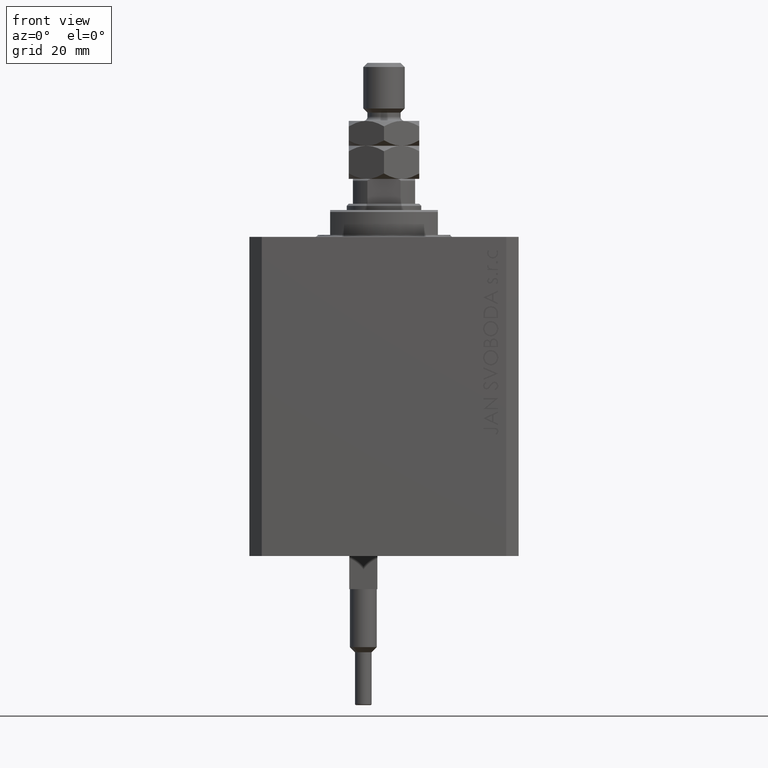
[diagram: clean part render]
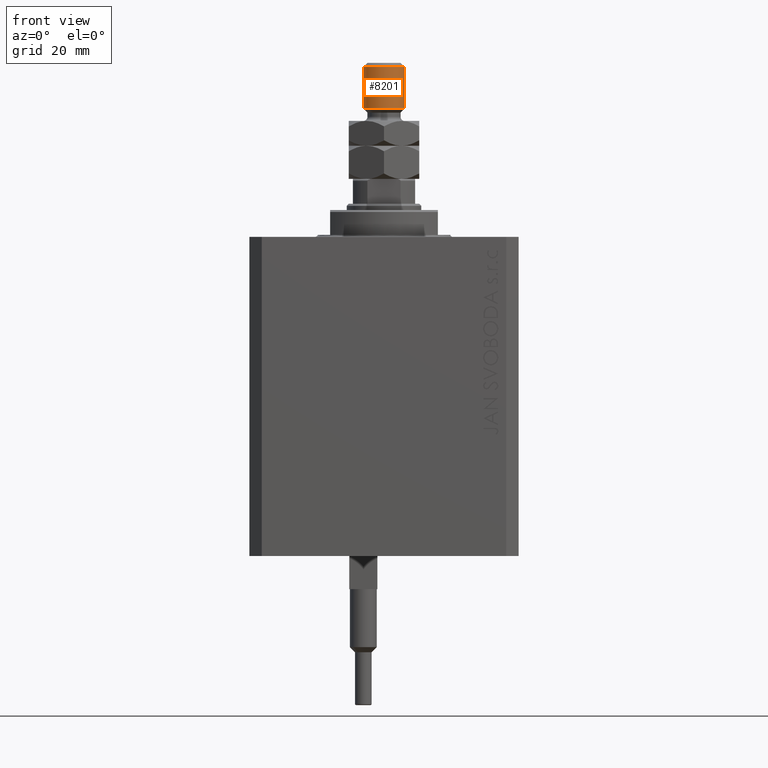
[diagram: same view with one face highlighted and labeled with its STEP entity id]
A machine part, front view. The second image highlights one B-rep face of the part: STEP entity #8201.
In plain terms, the highlighted cylindrical surface (edge-blend (fillet) strip) has radius 5 mm, axis along (-0, -0, -1).
Its self-contained STEP definition (entity closure, byte-faithful):
#155 = VERTEX_POINT ( 'NONE', #8549 ) ;
#1816 = EDGE_CURVE ( 'NONE', #49747, #35966, #25771, .T. ) ;
#2997 = VECTOR ( 'NONE', #40851, 1000.000000000000000 ) ;
#6295 = DIRECTION ( 'NONE',  ( -0.000000000000000000, -0.000000000000000000, -1.000000000000000000 ) ) ;
#8201 = ADVANCED_FACE ( 'NONE', ( #25921 ), #21396, .T. ) ;
#8549 = CARTESIAN_POINT ( 'NONE',  ( -5.000000000000000000, 0.000000000000000000, 26.99999999999998934 ) ) ;
#9533 = DIRECTION ( 'NONE',  ( 1.000000000000000000, 0.000000000000000000, 0.000000000000000000 ) ) ;
#10355 = EDGE_LOOP ( 'NONE', ( #32634, #11284, #13235, #38309 ) ) ;
#11284 = ORIENTED_EDGE ( 'NONE', *, *, #45762, .T. ) ;
#11936 = CARTESIAN_POINT ( 'NONE',  ( 0.000000000000000000, 0.000000000000000000, 17.00000000000000355 ) ) ;
#12650 = EDGE_CURVE ( 'NONE', #155, #25261, #21449, .T. ) ;
#13235 = ORIENTED_EDGE ( 'NONE', *, *, #12650, .T. ) ;
#14384 = CIRCLE ( 'NONE', #40941, 5.000000000000000000 ) ;
#14953 = EDGE_CURVE ( 'NONE', #25261, #35966, #14384, .T. ) ;
#16101 = AXIS2_PLACEMENT_3D ( 'NONE', #47595, #20850, #9533 ) ;
#18848 = VECTOR ( 'NONE', #44693, 1000.000000000000000 ) ;
#20329 = CARTESIAN_POINT ( 'NONE',  ( 5.000000000000000000, 6.123233995736766282E-16, 17.00000000000000355 ) ) ;
#20850 = DIRECTION ( 'NONE',  ( 0.000000000000000000, 0.000000000000000000, -1.000000000000000000 ) ) ;
#21396 = CYLINDRICAL_SURFACE ( 'NONE', #32647, 5.000000000000000000 ) ;
#21449 = LINE ( 'NONE', #33771, #2997 ) ;
#21887 = DIRECTION ( 'NONE',  ( -1.000000000000000000, 0.000000000000000000, 0.000000000000000000 ) ) ;
#23253 = DIRECTION ( 'NONE',  ( -0.000000000000000000, -0.000000000000000000, 1.000000000000000000 ) ) ;
#25261 = VERTEX_POINT ( 'NONE', #32796 ) ;
#25771 = LINE ( 'NONE', #48481, #18848 ) ;
#25921 = FACE_OUTER_BOUND ( 'NONE', #10355, .T. ) ;
#32634 = ORIENTED_EDGE ( 'NONE', *, *, #1816, .F. ) ;
#32647 = AXIS2_PLACEMENT_3D ( 'NONE', #40800, #6295, #21887 ) ;
#32796 = CARTESIAN_POINT ( 'NONE',  ( -5.000000000000000000, 0.000000000000000000, 17.00000000000000355 ) ) ;
#33771 = CARTESIAN_POINT ( 'NONE',  ( -5.000000000000000000, 0.000000000000000000, 28.00000000000000000 ) ) ;
#34303 = CARTESIAN_POINT ( 'NONE',  ( 5.000000000000000000, 6.123233995736766282E-16, 26.99999999999998934 ) ) ;
#35966 = VERTEX_POINT ( 'NONE', #20329 ) ;
#38309 = ORIENTED_EDGE ( 'NONE', *, *, #14953, .T. ) ;
#38892 = DIRECTION ( 'NONE',  ( 1.000000000000000000, 0.000000000000000000, 0.000000000000000000 ) ) ;
#40800 = CARTESIAN_POINT ( 'NONE',  ( 0.000000000000000000, 0.000000000000000000, 28.00000000000000000 ) ) ;
#40851 = DIRECTION ( 'NONE',  ( -0.000000000000000000, -0.000000000000000000, -1.000000000000000000 ) ) ;
#40941 = AXIS2_PLACEMENT_3D ( 'NONE', #11936, #23253, #38892 ) ;
#43486 = CIRCLE ( 'NONE', #16101, 5.000000000000000000 ) ;
#44693 = DIRECTION ( 'NONE',  ( -0.000000000000000000, -0.000000000000000000, -1.000000000000000000 ) ) ;
#45762 = EDGE_CURVE ( 'NONE', #49747, #155, #43486, .T. ) ;
#47595 = CARTESIAN_POINT ( 'NONE',  ( 0.000000000000000000, 0.000000000000000000, 26.99999999999998934 ) ) ;
#48481 = CARTESIAN_POINT ( 'NONE',  ( 5.000000000000000000, 6.123233995736766282E-16, 28.00000000000000000 ) ) ;
#49747 = VERTEX_POINT ( 'NONE', #34303 ) ;